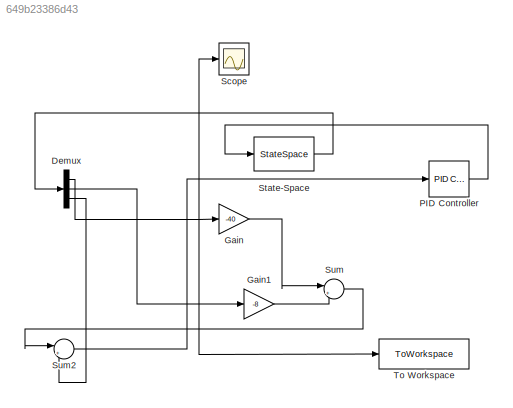
MODEL slx_649b23386d43
KIND model
CONFIG AbsTol = auto
CONFIG EnableMultiTasking = off
CONFIG FixedStep = auto
CONFIG MaxStep = 1e-3
CONFIG MinStep = auto
CONFIG RelTol = 1e-3
CONFIG SampleTimeConstraint = Unconstrained
CONFIG SolverName = ode45
CONFIG StartTime = 0.0
CONFIG StopTime = 10.0
BLOCK [Demux] Demux
  Outputs = 3
BLOCK [Gain] Gain
  Gain = -40
BLOCK [Gain] Gain1
  Gain = -8
BLOCK [Reference] PID Controller  REF=slpidlib/PID Controller
  LibrarySourceBlock = simulink/Continuous/PID Controller
  SourceBlock = slpidlib/PID Controller
  SourceType = PID 1dof
BLOCK [Scope] Scope
  ActiveDisplayYMaximum = 1
  ActiveDisplayYMinimum = -1
  Floating = off
  GraphicalSettings = {"Style":{"BackgroundColor":[0.12941176470588237,0.12941176470588237,0.12941176470588237],"AxesColor":[0.07058823529411765,0.07058823529411765,0.07058823529411765],"LabelsColor":[0.8509803921568627,0.8509803921568627,0.8509803921568627],"PreserveColors":false,"Visible":[true],"LineStyle":["-"],"LineWidth":[1.5],"BarWidth":[0.9],"LineColor":["auto"],"LineFaceAlpha":[1],"LineEdgeAlpha":[1],"Marker":...<+1996ch>
  MultipleDisplayCache = [{"MaxYLimMag":1,"MaxYLimReal":1,"MinYLimMag":0,"MinYLimReal":-1,"PlotAsMagnitudePhase":false,"ShowGrid":true,"ShowLegend":false,"Title":"%<SignalLabel>","YLabel":""}]
  NumInputPorts = 1
  ScopeFrameLocation = window
  WasSavedAsWebScope = on
  WindowPosition = [616.000000,350.000000,560.000000,420.000000,]
BLOCK [StateSpace] State-Space
  A = [0 1 0; 9.81/0.2 0 2.0; 0 0 -4/0.02]
  B = [0; 0; 1/0.02]
  C = [1 0 0; 0 1 0; 0 0 1]
  D = [0; 0; 0]
  InitialCondition = [0.05; 0; 0]
BLOCK [Sum] Sum
  Inputs = |++
BLOCK [Sum] Sum2
  Inputs = |+-
BLOCK [ToWorkspace] To Workspace
  FixptAsFi = on
  MaxDataPoints = inf
  SampleTime = -1
  SaveFormat = Structure With Time
  VariableName = phi
NET Demux:1 -> Gain:1, Scope:1, To Workspace:1
LINE Demux:2 -> Gain1:1
LINE Demux:3 -> Sum2:2
LINE Gain1:1 -> Sum:2
LINE Gain:1 -> Sum:1
LINE PID Controller:1 -> State-Space:1
LINE State-Space:1 -> Demux:1
LINE Sum2:1 -> PID Controller:1
LINE Sum:1 -> Sum2:1
note: NET lines group one-source signal fan-out (src -> all destinations, sorted); 1:1 wires keep LINE
